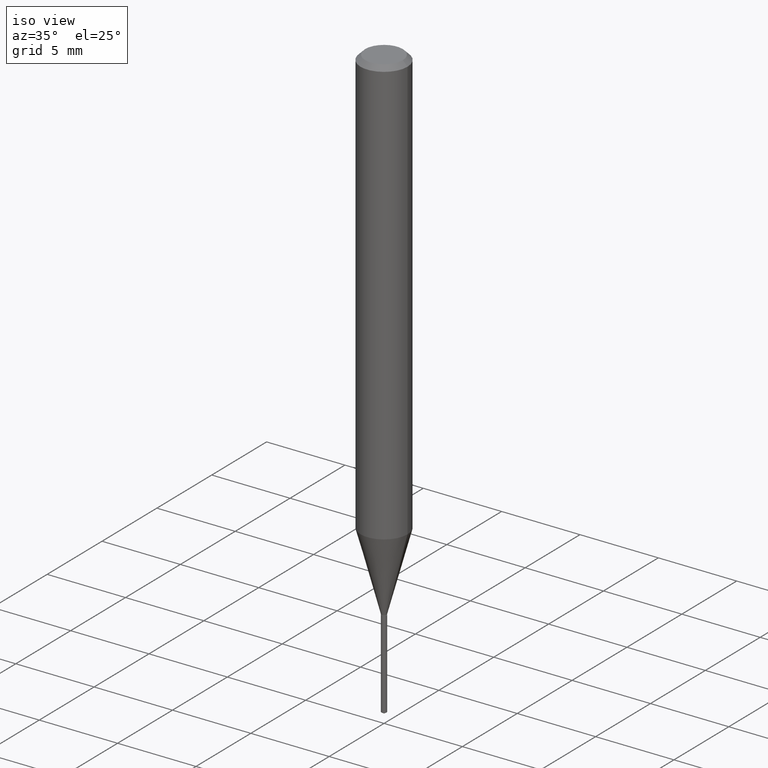
[diagram: clean part render]
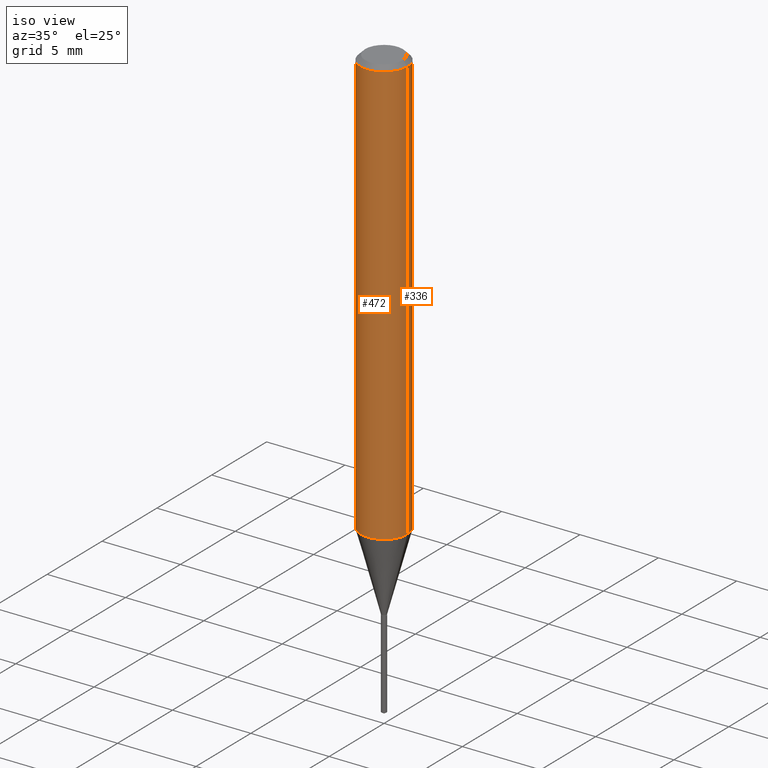
[diagram: same view with one multi-face feature highlighted, each face labeled with its STEP entity id]
A machine part, iso view. The highlighted faces form ONE feature: a constant-radius fillet chain: 2 tangent blend faces with common blend radius 1.4999 mm. The faces share edges in the B-rep.
Their STEP definitions:
[1] entity #472 (Cylinder):
#7 = CARTESIAN_POINT ( 'NONE',  ( 0.05905000000000014404, -4.160731030871339348E-15, -1.073580730062255295 ) ) ;
#25 = DIRECTION ( 'NONE',  ( 1.000000000000000000, -6.982962677686266711E-15, 4.876176775795936353E-29 ) ) ;
#38 = DIRECTION ( 'NONE',  ( 1.000000000000000000, -6.982962677686265133E-15, 0.000000000000000000 ) ) ;
#44 = DIRECTION ( 'NONE',  ( 1.000000000000000000, -6.982962677686266711E-15, 0.000000000000000000 ) ) ;
#45 = CIRCLE ( 'NONE', #176, 0.05904999999999999832 ) ;
#47 = DIRECTION ( 'NONE',  ( -2.445468806185136877E-29, 3.491481338843145188E-15, 1.000000000000000000 ) ) ;
#61 = FACE_OUTER_BOUND ( 'NONE', #233, .T. ) ;
#71 = EDGE_CURVE ( 'NONE', #88, #230, #358, .T. ) ;
#84 = EDGE_CURVE ( 'NONE', #230, #447, #407, .T. ) ;
#88 = VERTEX_POINT ( 'NONE', #412 ) ;
#98 = CARTESIAN_POINT ( 'NONE',  ( 0.05904999999999999832, -4.535783407291118600E-16, -0.01181000000000006871 ) ) ;
#110 = DIRECTION ( 'NONE',  ( -2.445468806185136877E-29, 3.491481338843145188E-15, 1.000000000000000000 ) ) ;
#116 = LINE ( 'NONE', #158, #129 ) ;
#127 = CYLINDRICAL_SURFACE ( 'NONE', #449, 0.05905000000000006771 ) ;
#129 = VECTOR ( 'NONE', #47, 39.37007874015748143 ) ;
#158 = CARTESIAN_POINT ( 'NONE',  ( -0.05905000000000006771, 4.195754854663396409E-16, -2.904631170795525045E-30 ) ) ;
#166 = ORIENTED_EDGE ( 'NONE', *, *, #286, .F. ) ;
#172 = EDGE_CURVE ( 'NONE', #88, #282, #116, .T. ) ;
#176 = AXIS2_PLACEMENT_3D ( 'NONE', #419, #386, #44 ) ;
#199 = ORIENTED_EDGE ( 'NONE', *, *, #84, .T. ) ;
#216 = ORIENTED_EDGE ( 'NONE', *, *, #172, .F. ) ;
#230 = VERTEX_POINT ( 'NONE', #7 ) ;
#233 = EDGE_LOOP ( 'NONE', ( #216, #284, #199, #166 ) ) ;
#272 = CARTESIAN_POINT ( 'NONE',  ( -0.05904999999999999832, -1.475235254216510994E-15, -0.01181000000000006871 ) ) ;
#282 = VERTEX_POINT ( 'NONE', #272 ) ;
#284 = ORIENTED_EDGE ( 'NONE', *, *, #71, .T. ) ;
#285 = CARTESIAN_POINT ( 'NONE',  ( 0.000000000000000000, 0.000000000000000000, 0.000000000000000000 ) ) ;
#286 = EDGE_CURVE ( 'NONE', #282, #447, #45, .T. ) ;
#305 = CARTESIAN_POINT ( 'NONE',  ( 2.625408186288710950E-29, -3.748387084753965216E-15, -1.073580730062255295 ) ) ;
#320 = AXIS2_PLACEMENT_3D ( 'NONE', #305, #453, #38 ) ;
#358 = CIRCLE ( 'NONE', #320, 0.05905000000000013016 ) ;
#363 = DIRECTION ( 'NONE',  ( -2.445468806185136597E-29, 3.491481338843145583E-15, 1.000000000000000000 ) ) ;
#380 = CARTESIAN_POINT ( 'NONE',  ( 0.05905000000000006771, -4.123439461173745257E-16, 2.879382386107503723E-30 ) ) ;
#382 = VECTOR ( 'NONE', #110, 39.37007874015748143 ) ;
#386 = DIRECTION ( 'NONE',  ( -2.445468806185136597E-29, 3.491481338843145583E-15, 1.000000000000000000 ) ) ;
#407 = LINE ( 'NONE', #380, #382 ) ;
#412 = CARTESIAN_POINT ( 'NONE',  ( -0.05905000000000014404, -3.328811599287623751E-15, -1.073580730062255295 ) ) ;
#419 = CARTESIAN_POINT ( 'NONE',  ( 2.888098660104663328E-31, -4.123439461173779030E-17, -0.01181000000000006871 ) ) ;
#447 = VERTEX_POINT ( 'NONE', #98 ) ;
#449 = AXIS2_PLACEMENT_3D ( 'NONE', #285, #363, #25 ) ;
#453 = DIRECTION ( 'NONE',  ( -2.445468806185136597E-29, 3.491481338843145583E-15, 1.000000000000000000 ) ) ;
#472 = ADVANCED_FACE ( 'NONE', ( #61 ), #127, .T. ) ;
[2] entity #336 (Cylinder):
#7 = CARTESIAN_POINT ( 'NONE',  ( 0.05905000000000014404, -4.160731030871339348E-15, -1.073580730062255295 ) ) ;
#8 = ORIENTED_EDGE ( 'NONE', *, *, #367, .T. ) ;
#47 = DIRECTION ( 'NONE',  ( -2.445468806185136877E-29, 3.491481338843145188E-15, 1.000000000000000000 ) ) ;
#59 = DIRECTION ( 'NONE',  ( -2.445468806185136597E-29, 3.491481338843145583E-15, 1.000000000000000000 ) ) ;
#81 = CARTESIAN_POINT ( 'NONE',  ( 2.888098660104663328E-31, -4.123439461173779030E-17, -0.01181000000000006871 ) ) ;
#84 = EDGE_CURVE ( 'NONE', #230, #447, #407, .T. ) ;
#86 = CIRCLE ( 'NONE', #433, 0.05905000000000013016 ) ;
#88 = VERTEX_POINT ( 'NONE', #412 ) ;
#90 = ORIENTED_EDGE ( 'NONE', *, *, #175, .F. ) ;
#95 = DIRECTION ( 'NONE',  ( 1.000000000000000000, -6.982962677686266711E-15, 4.876176775795936353E-29 ) ) ;
#98 = CARTESIAN_POINT ( 'NONE',  ( 0.05904999999999999832, -4.535783407291118600E-16, -0.01181000000000006871 ) ) ;
#110 = DIRECTION ( 'NONE',  ( -2.445468806185136877E-29, 3.491481338843145188E-15, 1.000000000000000000 ) ) ;
#116 = LINE ( 'NONE', #158, #129 ) ;
#129 = VECTOR ( 'NONE', #47, 39.37007874015748143 ) ;
#158 = CARTESIAN_POINT ( 'NONE',  ( -0.05905000000000006771, 4.195754854663396409E-16, -2.904631170795525045E-30 ) ) ;
#167 = CARTESIAN_POINT ( 'NONE',  ( 0.000000000000000000, 0.000000000000000000, 0.000000000000000000 ) ) ;
#172 = EDGE_CURVE ( 'NONE', #88, #282, #116, .T. ) ;
#174 = EDGE_LOOP ( 'NONE', ( #8, #434, #90, #356 ) ) ;
#175 = EDGE_CURVE ( 'NONE', #447, #282, #311, .T. ) ;
#189 = DIRECTION ( 'NONE',  ( -2.445468806185136597E-29, 3.491481338843145583E-15, 1.000000000000000000 ) ) ;
#200 = CYLINDRICAL_SURFACE ( 'NONE', #350, 0.05905000000000006771 ) ;
#230 = VERTEX_POINT ( 'NONE', #7 ) ;
#272 = CARTESIAN_POINT ( 'NONE',  ( -0.05904999999999999832, -1.475235254216510994E-15, -0.01181000000000006871 ) ) ;
#282 = VERTEX_POINT ( 'NONE', #272 ) ;
#290 = DIRECTION ( 'NONE',  ( 1.000000000000000000, -6.982962677686265133E-15, 0.000000000000000000 ) ) ;
#311 = CIRCLE ( 'NONE', #333, 0.05904999999999999832 ) ;
#323 = DIRECTION ( 'NONE',  ( -2.445468806185136597E-29, 3.491481338843145583E-15, 1.000000000000000000 ) ) ;
#333 = AXIS2_PLACEMENT_3D ( 'NONE', #81, #189, #384 ) ;
#336 = ADVANCED_FACE ( 'NONE', ( #357 ), #200, .T. ) ;
#350 = AXIS2_PLACEMENT_3D ( 'NONE', #167, #323, #95 ) ;
#356 = ORIENTED_EDGE ( 'NONE', *, *, #84, .F. ) ;
#357 = FACE_OUTER_BOUND ( 'NONE', #174, .T. ) ;
#367 = EDGE_CURVE ( 'NONE', #230, #88, #86, .T. ) ;
#380 = CARTESIAN_POINT ( 'NONE',  ( 0.05905000000000006771, -4.123439461173745257E-16, 2.879382386107503723E-30 ) ) ;
#382 = VECTOR ( 'NONE', #110, 39.37007874015748143 ) ;
#384 = DIRECTION ( 'NONE',  ( 1.000000000000000000, -6.982962677686266711E-15, 0.000000000000000000 ) ) ;
#407 = LINE ( 'NONE', #380, #382 ) ;
#412 = CARTESIAN_POINT ( 'NONE',  ( -0.05905000000000014404, -3.328811599287623751E-15, -1.073580730062255295 ) ) ;
#433 = AXIS2_PLACEMENT_3D ( 'NONE', #435, #59, #290 ) ;
#434 = ORIENTED_EDGE ( 'NONE', *, *, #172, .T. ) ;
#435 = CARTESIAN_POINT ( 'NONE',  ( 2.625408186288710950E-29, -3.748387084753965216E-15, -1.073580730062255295 ) ) ;
#447 = VERTEX_POINT ( 'NONE', #98 ) ;